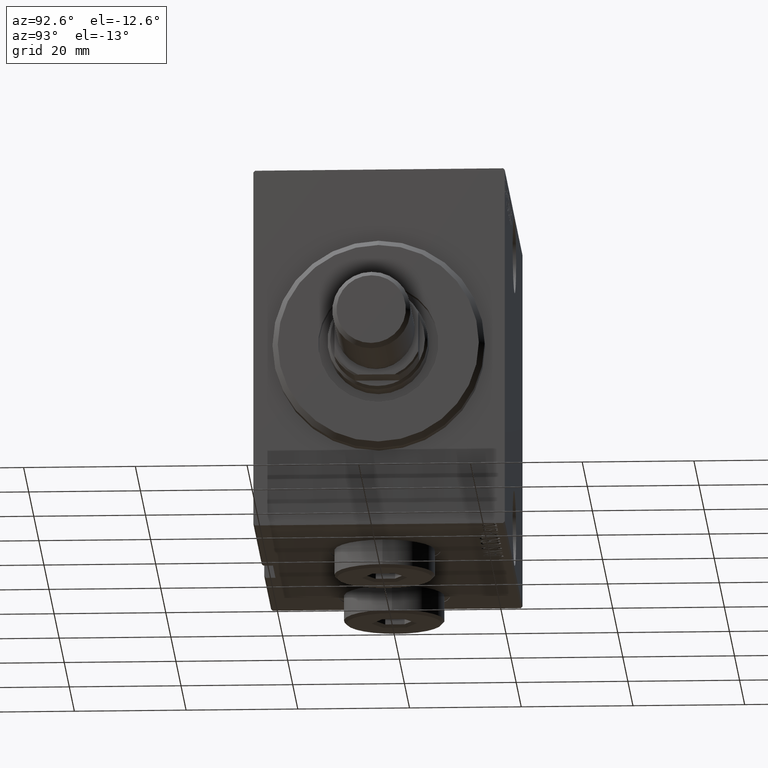
[diagram: clean part render]
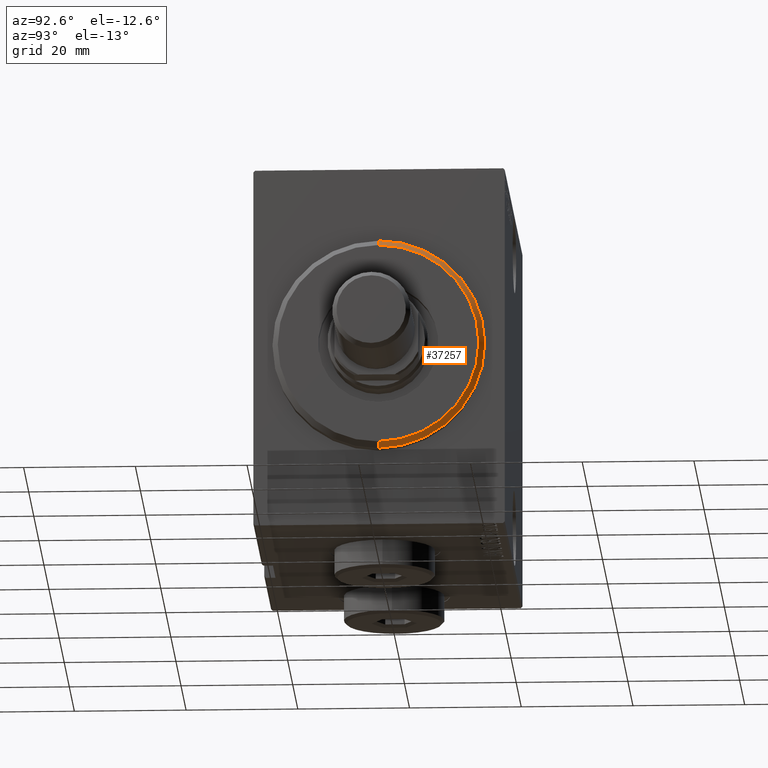
[diagram: same view with one face highlighted and labeled with its STEP entity id]
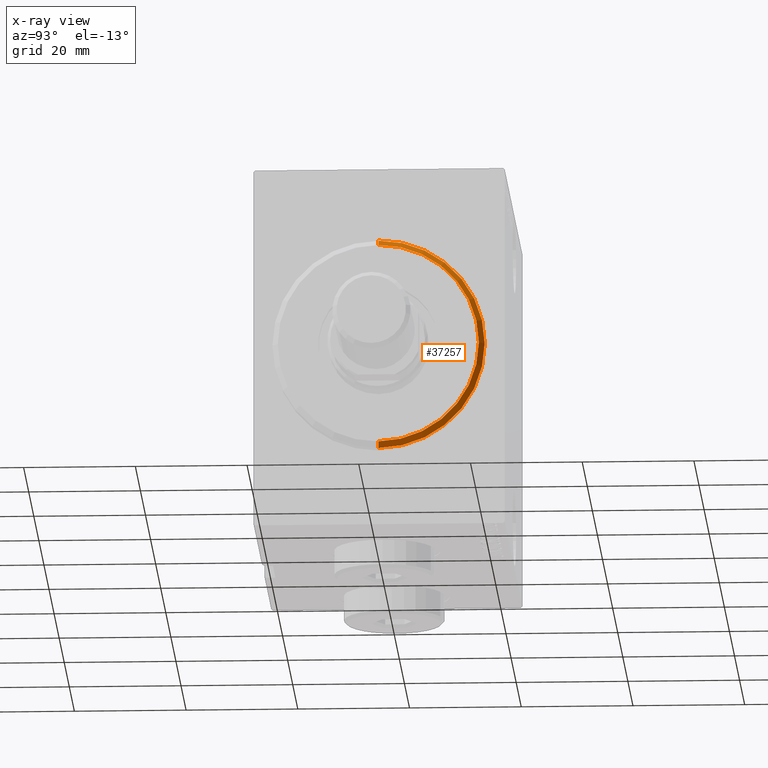
[diagram: x-ray of the same camera — body ghosted, the highlighted face saturated]
A machine part, auxiliary view. The second image highlights one B-rep face of the part: STEP entity #37257.
The next image is the same camera in x-ray: the body ghosted, the highlighted face saturated — about 0% of this face is hidden behind the body in this view.
In plain terms, the highlighted conical surface has half-angle 45 deg.
Its self-contained STEP definition (entity closure, byte-faithful):
#763 = CARTESIAN_POINT ( 'NONE',  ( 1.999999999999992228, 0.000000000000000000, 19.00000000000000000 ) ) ;
#936 = AXIS2_PLACEMENT_3D ( 'NONE', #30165, #15753, #2221 ) ;
#1277 = FACE_OUTER_BOUND ( 'NONE', #39784, .T. ) ;
#2221 = DIRECTION ( 'NONE',  ( 0.000000000000000000, 0.000000000000000000, -1.000000000000000000 ) ) ;
#3071 = DIRECTION ( 'NONE',  ( 0.000000000000000000, 0.000000000000000000, -1.000000000000000000 ) ) ;
#3996 = LINE ( 'NONE', #14582, #8179 ) ;
#4601 = CIRCLE ( 'NONE', #33375, 17.99999999999999645 ) ;
#5364 = LINE ( 'NONE', #39615, #5658 ) ;
#5658 = VECTOR ( 'NONE', #22696, 1000.000000000000000 ) ;
#7816 = AXIS2_PLACEMENT_3D ( 'NONE', #27650, #41413, #17522 ) ;
#8179 = VECTOR ( 'NONE', #31472, 1000.000000000000000 ) ;
#9764 = ORIENTED_EDGE ( 'NONE', *, *, #9772, .F. ) ;
#9772 = EDGE_CURVE ( 'NONE', #33112, #35436, #3996, .T. ) ;
#12164 = EDGE_CURVE ( 'NONE', #35436, #13026, #22495, .T. ) ;
#13026 = VERTEX_POINT ( 'NONE', #40092 ) ;
#14196 = ORIENTED_EDGE ( 'NONE', *, *, #42515, .T. ) ;
#14582 = CARTESIAN_POINT ( 'NONE',  ( 3.000000000000000000, 0.000000000000000000, 17.99999999999999645 ) ) ;
#15753 = DIRECTION ( 'NONE',  ( -1.000000000000000000, 0.000000000000000000, 0.000000000000000000 ) ) ;
#17438 = CARTESIAN_POINT ( 'NONE',  ( 3.000000000000000000, 2.265596578422603002E-15, -17.99999999999999645 ) ) ;
#17522 = DIRECTION ( 'NONE',  ( 0.000000000000000000, 0.000000000000000000, 1.000000000000000000 ) ) ;
#18984 = CARTESIAN_POINT ( 'NONE',  ( 3.000000000000000000, 0.000000000000000000, 17.99999999999999645 ) ) ;
#22182 = ORIENTED_EDGE ( 'NONE', *, *, #12164, .F. ) ;
#22495 = CIRCLE ( 'NONE', #936, 19.00000000000000000 ) ;
#22696 = DIRECTION ( 'NONE',  ( -0.7071067811865487940, 8.659560562354918067E-17, -0.7071067811865463515 ) ) ;
#24983 = CONICAL_SURFACE ( 'NONE', #7816, 17.99999999999999645, 0.7853981633974466137 ) ;
#25691 = EDGE_CURVE ( 'NONE', #41398, #33112, #4601, .T. ) ;
#27650 = CARTESIAN_POINT ( 'NONE',  ( 3.000000000000000000, 0.000000000000000000, 0.000000000000000000 ) ) ;
#28025 = DIRECTION ( 'NONE',  ( 1.000000000000000000, -0.000000000000000000, 0.000000000000000000 ) ) ;
#28461 = CARTESIAN_POINT ( 'NONE',  ( 3.000000000000000000, 0.000000000000000000, 0.000000000000000000 ) ) ;
#30165 = CARTESIAN_POINT ( 'NONE',  ( 1.999999999999992228, 0.000000000000000000, 0.000000000000000000 ) ) ;
#31472 = DIRECTION ( 'NONE',  ( -0.7071067811865487940, 0.000000000000000000, 0.7071067811865463515 ) ) ;
#32023 = ORIENTED_EDGE ( 'NONE', *, *, #25691, .F. ) ;
#33112 = VERTEX_POINT ( 'NONE', #18984 ) ;
#33375 = AXIS2_PLACEMENT_3D ( 'NONE', #28461, #28025, #3071 ) ;
#35436 = VERTEX_POINT ( 'NONE', #763 ) ;
#37257 = ADVANCED_FACE ( 'NONE', ( #1277 ), #24983, .T. ) ;
#39615 = CARTESIAN_POINT ( 'NONE',  ( 3.000000000000000000, 2.204364238465235033E-15, -17.99999999999999645 ) ) ;
#39784 = EDGE_LOOP ( 'NONE', ( #32023, #14196, #22182, #9764 ) ) ;
#40092 = CARTESIAN_POINT ( 'NONE',  ( 1.999999999999992228, 2.326828918379970970E-15, -19.00000000000000000 ) ) ;
#41398 = VERTEX_POINT ( 'NONE', #17438 ) ;
#41413 = DIRECTION ( 'NONE',  ( -1.000000000000000000, 0.000000000000000000, 0.000000000000000000 ) ) ;
#42515 = EDGE_CURVE ( 'NONE', #41398, #13026, #5364, .T. ) ;